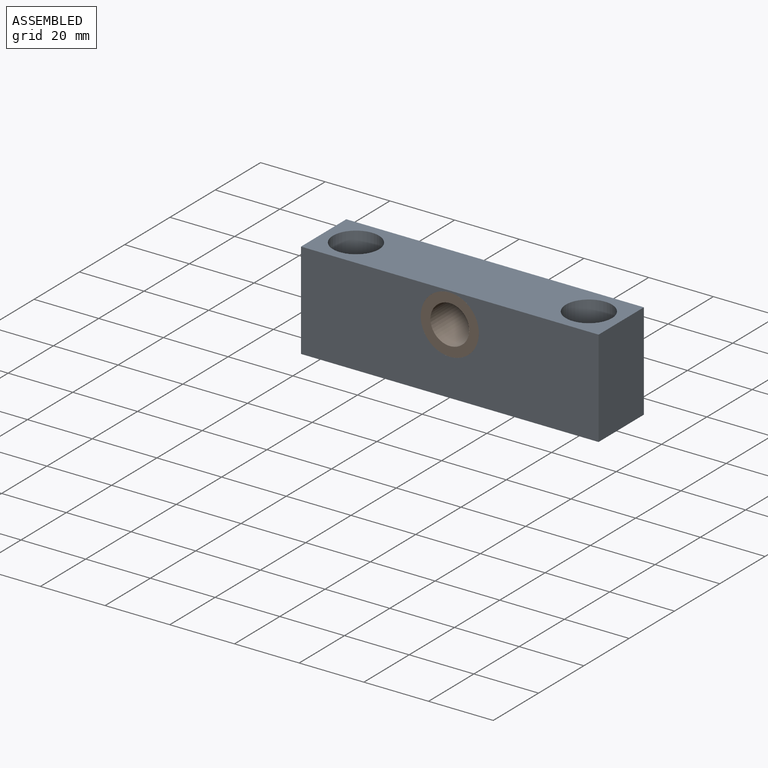
[diagram: assembled view]
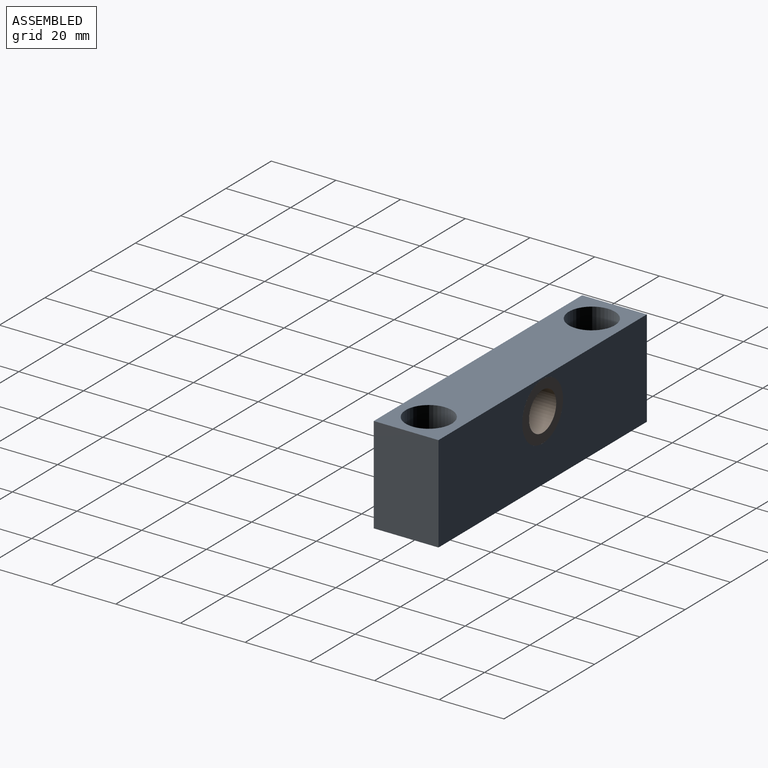
[diagram: assembled view, second angle]
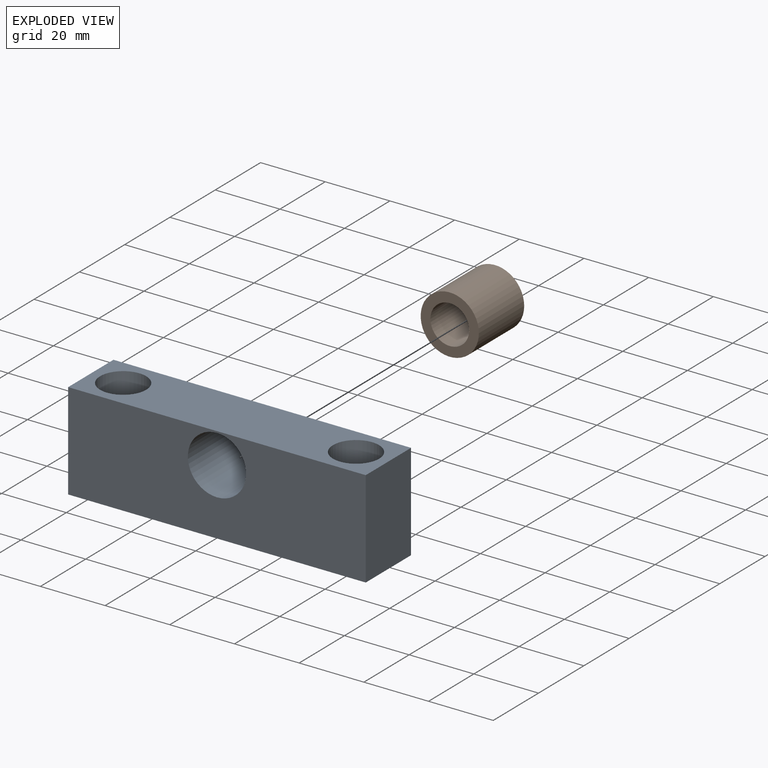
[diagram: exploded view]
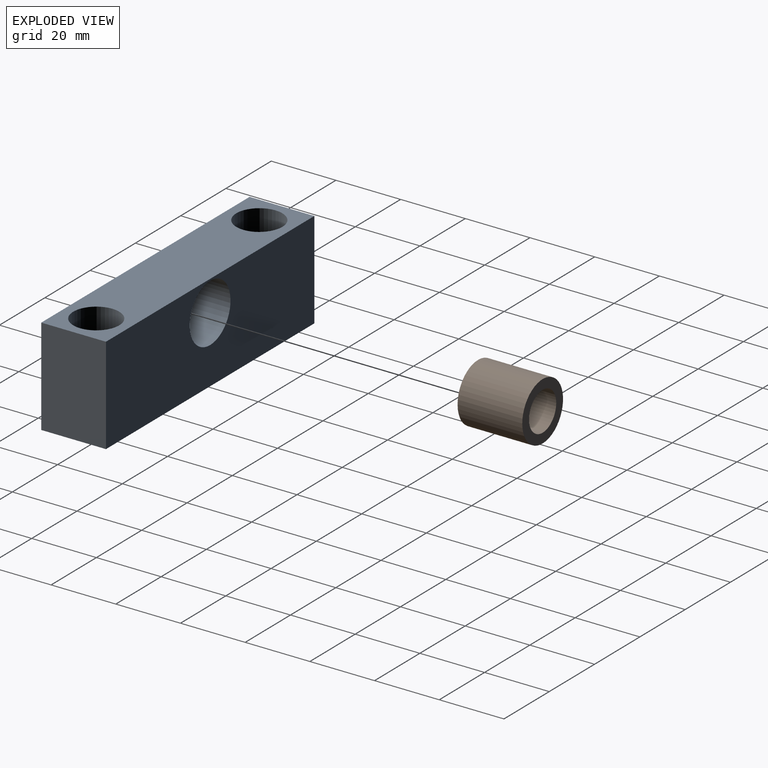
[diagram: exploded view, second angle]
ASSEMBLY  parts=2 mates=2
PART A: 13 faces, bbox 92x20x30 mm
  f0: plane 92x20mm, normal (0,0,-1), area 1712.8mm2, adj f1,f4,f5,f6,f7,f10
  f1: plane 30x20mm, normal (1,0,0), area 600mm2, adj f0,f2,f5,f6
  f2: plane 92x20mm, normal (0,0,1), area 1521mm2, adj f1,f4,f5,f6,f9,f12
  f3: cylinder r=9mm len=20mm, axis (0,1,0), area 1131mm2, adj f5,f6
  f4: plane 30x20mm, normal (-1,0,0), area 600mm2, adj f0,f2,f5,f6
  f5: plane 92x30mm, normal (0,-1,0), area 2505.5mm2, adj f0,f1,f2,f3,f4
  f6: plane 92x30mm, normal (0,1,0), area 2505.5mm2, adj f0,f1,f2,f3,f4
  f7: cylinder r=4.5mm len=22mm, axis (0,0,1), area 622mm2, adj f0,f8
  f8: plane 14.25x14.25mm, normal (0,0,1), area 95.9mm2, adj f7,f9
  f9: cylinder r=7.12mm len=14.25mm, axis (0,0,1), area 358.1mm2, adj f2,f8
  f10: cylinder r=4.5mm len=22mm, axis (0,0,1), area 622mm2, adj f0,f11
  f11: plane 14.25x14.25mm, normal (0,0,1), area 95.9mm2, adj f10,f12
  f12: cylinder r=7.12mm len=14.25mm, axis (0,0,1), area 358.1mm2, adj f2,f11
PART B: 4 faces, bbox 18x18x20 mm
  f0: cylinder r=6mm len=20mm, axis (0,0,-1), area 754mm2, adj f2,f3
  f1: cylinder r=9mm len=20mm, axis (0,0,-1), area 1131mm2, adj f2,f3
  f2: plane 18x18mm, normal (0,0,1), area 141.4mm2, adj f0,f1
  f3: plane 18x18mm, normal (0,0,-1), area 141.4mm2, adj f0,f1
PLACE A t=(2,-0.65,-5.07)mm fixed
PLACE B rot(axis=(1,0,0),90deg) t=(2,9.35,0.43)mm
MATE planar B.f1 <-> A.f5  axis (0,-1,0) through (2,-10.65,0.43)mm
MATE cylindrical B.f1 <-> A.f3  axis (0,1,0) through (2,-0.65,0.43)mm
